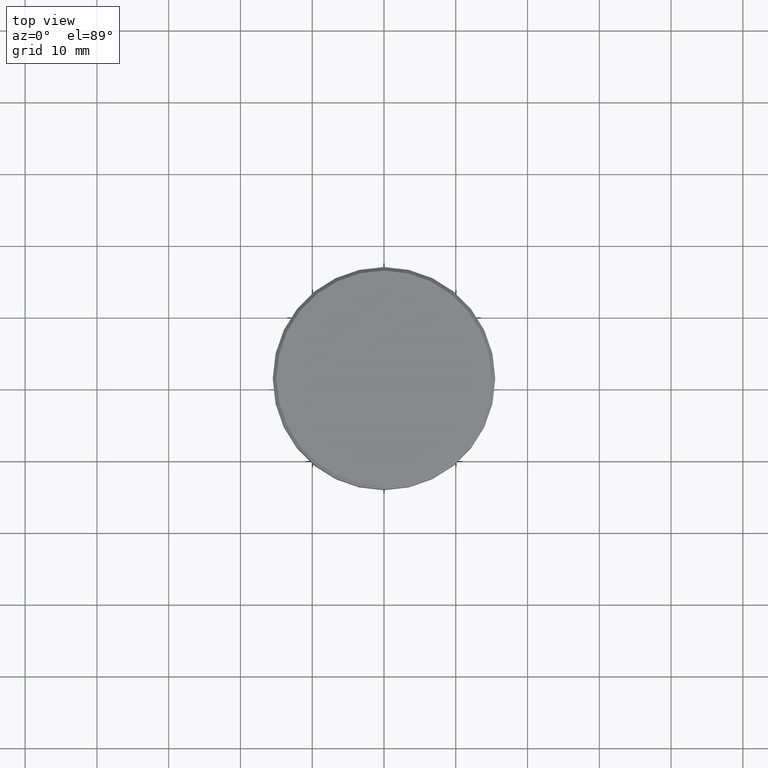
[diagram: clean part render]
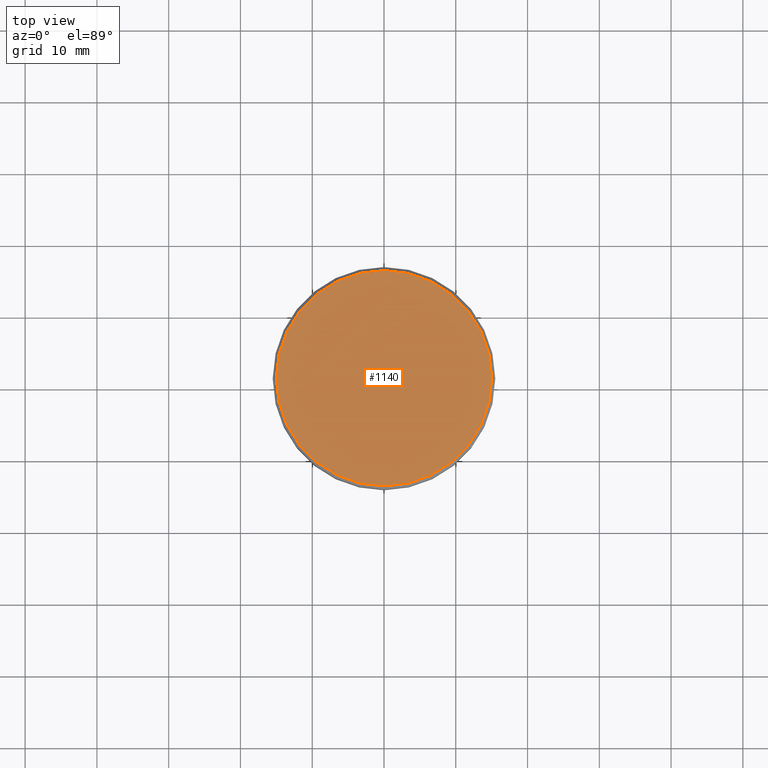
[diagram: same view with one face highlighted and labeled with its STEP entity id]
A machine part, top view. The second image highlights one B-rep face of the part: STEP entity #1140.
In plain terms, the highlighted planar face has unit normal (0, -0, 1).
Its self-contained STEP definition (entity closure, byte-faithful):
#48 = EDGE_CURVE ( 'NONE', #842, #62, #771, .T. ) ;
#62 = VERTEX_POINT ( 'NONE', #322 ) ;
#65 = CIRCLE ( 'NONE', #295, 15.00000000000001421 ) ;
#75 = DIRECTION ( 'NONE',  ( -0.000000000000000000, -0.000000000000000000, 1.000000000000000000 ) ) ;
#87 = CARTESIAN_POINT ( 'NONE',  ( 0.000000000000000000, 0.000000000000000000, 0.000000000000000000 ) ) ;
#114 = DIRECTION ( 'NONE',  ( -0.000000000000000000, -0.000000000000000000, 1.000000000000000000 ) ) ;
#160 = AXIS2_PLACEMENT_3D ( 'NONE', #648, #370, #187 ) ;
#178 = DIRECTION ( 'NONE',  ( 1.000000000000000000, 0.000000000000000000, 0.000000000000000000 ) ) ;
#187 = DIRECTION ( 'NONE',  ( 1.000000000000000000, 0.000000000000000000, 0.000000000000000000 ) ) ;
#251 = AXIS2_PLACEMENT_3D ( 'NONE', #1141, #114, #395 ) ;
#295 = AXIS2_PLACEMENT_3D ( 'NONE', #87, #75, #178 ) ;
#322 = CARTESIAN_POINT ( 'NONE',  ( -15.00000000000001421, 0.000000000000000000, 0.000000000000000000 ) ) ;
#370 = DIRECTION ( 'NONE',  ( 0.000000000000000000, -0.000000000000000000, 1.000000000000000000 ) ) ;
#395 = DIRECTION ( 'NONE',  ( 1.000000000000000000, 0.000000000000000000, 0.000000000000000000 ) ) ;
#606 = CARTESIAN_POINT ( 'NONE',  ( 15.00000000000001421, 1.867586368699714559E-15, 0.000000000000000000 ) ) ;
#648 = CARTESIAN_POINT ( 'NONE',  ( 0.000000000000000000, 0.000000000000000000, 0.000000000000000000 ) ) ;
#771 = CIRCLE ( 'NONE', #251, 15.00000000000001421 ) ;
#799 = ORIENTED_EDGE ( 'NONE', *, *, #1038, .T. ) ;
#828 = FACE_OUTER_BOUND ( 'NONE', #1152, .T. ) ;
#835 = PLANE ( 'NONE',  #160 ) ;
#842 = VERTEX_POINT ( 'NONE', #606 ) ;
#1005 = ORIENTED_EDGE ( 'NONE', *, *, #48, .T. ) ;
#1038 = EDGE_CURVE ( 'NONE', #62, #842, #65, .T. ) ;
#1140 = ADVANCED_FACE ( 'NONE', ( #828 ), #835, .T. ) ;
#1141 = CARTESIAN_POINT ( 'NONE',  ( 0.000000000000000000, 0.000000000000000000, 0.000000000000000000 ) ) ;
#1152 = EDGE_LOOP ( 'NONE', ( #799, #1005 ) ) ;